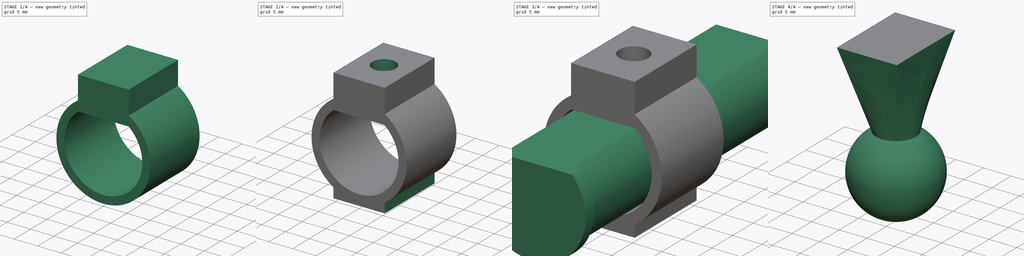
[diagram: build sequence overview — one tinted view per stage of 4, left to right]
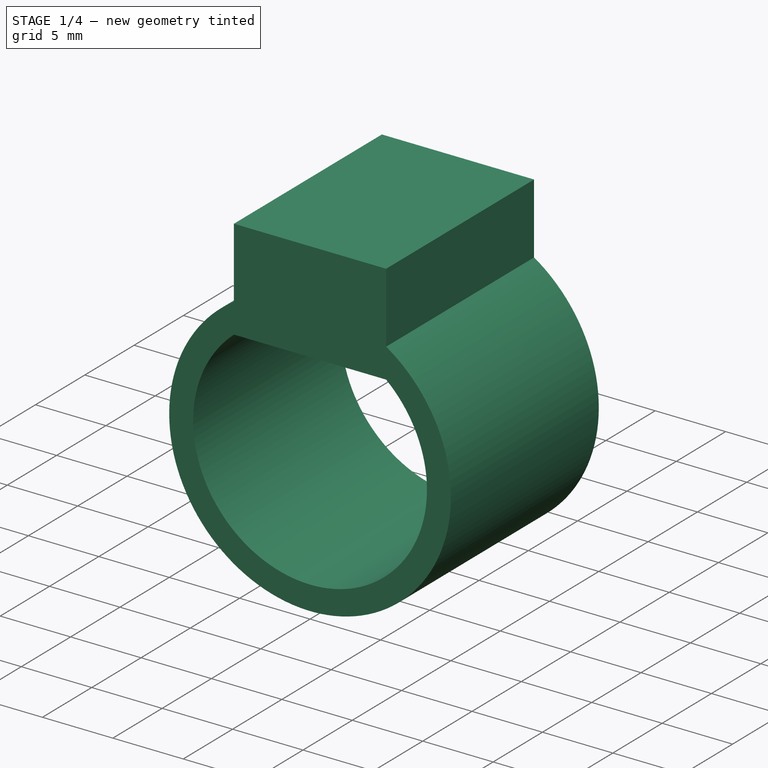
[diagram: stage 1 of 4 — iso view after this stage's code; geometry added in this stage tinted green]
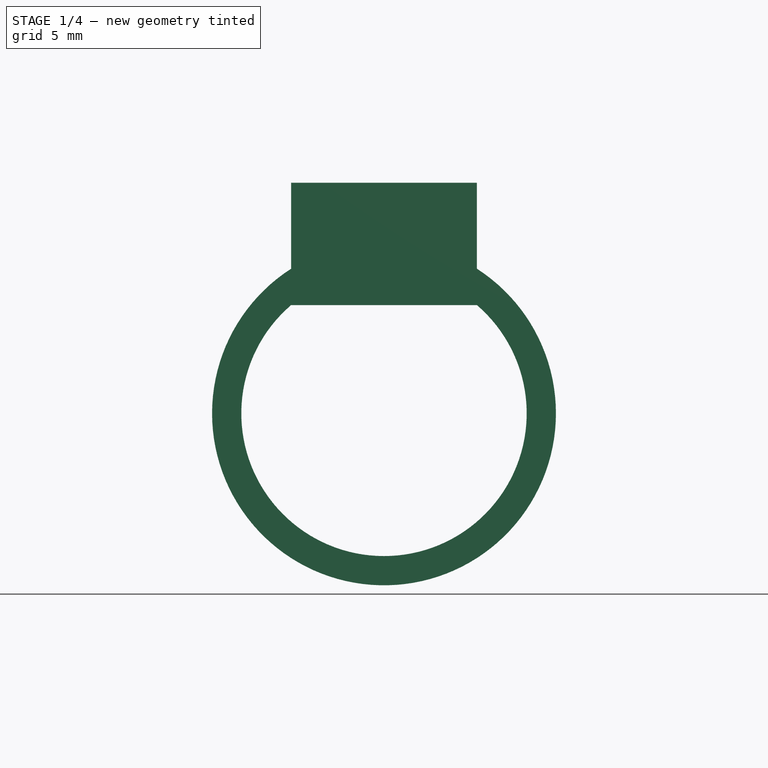
[diagram: stage 1 of 4 — front view after this stage's code; geometry added in this stage tinted green]
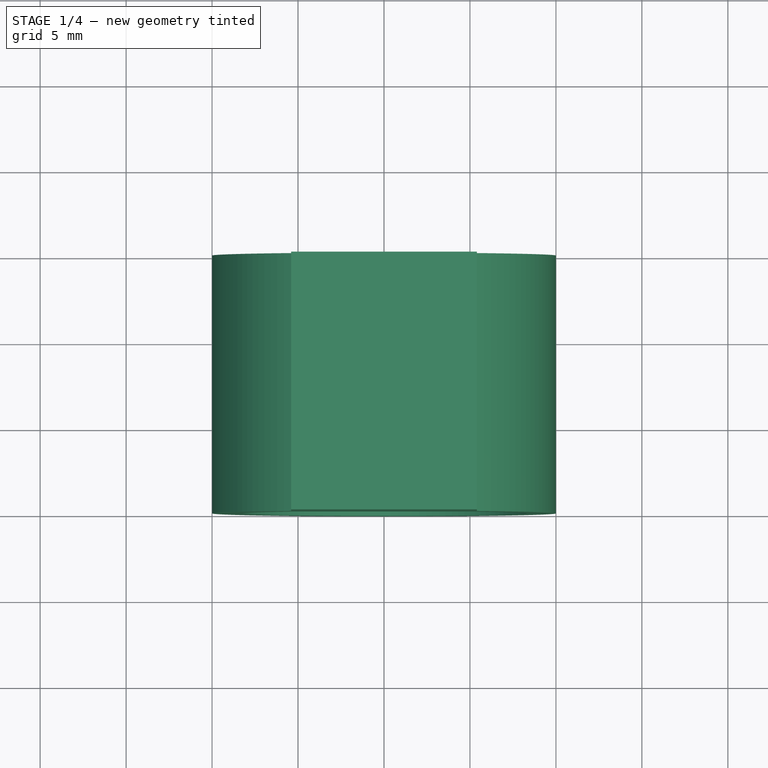
[diagram: stage 1 of 4 — top view after this stage's code; geometry added in this stage tinted green]
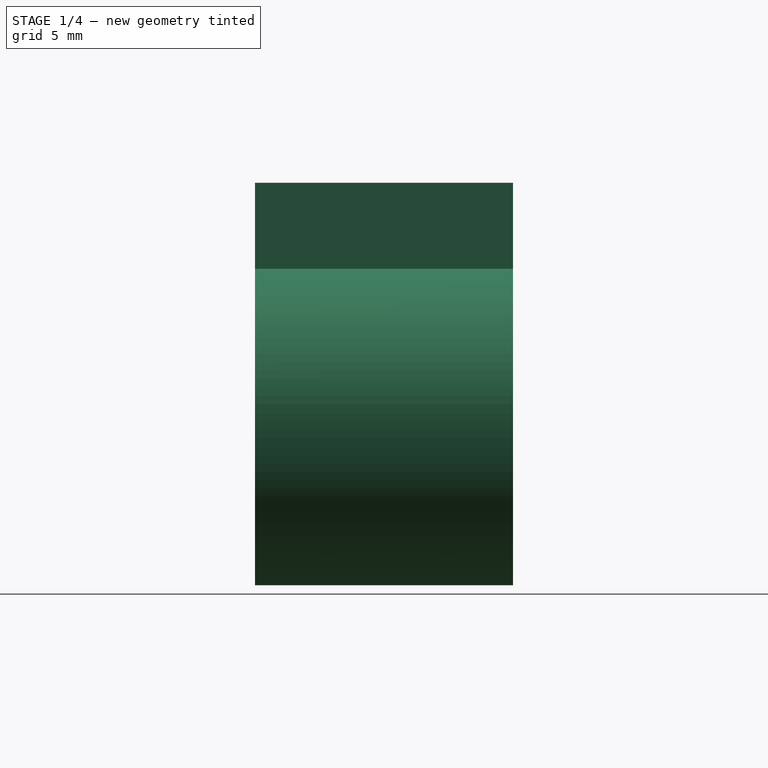
[diagram: stage 1 of 4 — right view after this stage's code; geometry added in this stage tinted green]
FCSTD DOCUMENT  (FreeCAD 1.0R39109 (Git))
Label: phone_adaptor
License: All rights reserved
LicenseURL: http://www.ohwr.org/attachments/2388/cern_ohl_v_1_2.txt
objects: Sketcher::SketchObject×11, PartDesign::Pad×4, PartDesign::Plane×4, PartDesign::Body×3, PartDesign::SubShapeBinder×2, PartDesign::Pocket×2, PartDesign::Hole×1, PartDesign::AdditiveLoft×1, PartDesign::Point×1, PartDesign::Line×1, PartDesign::Revolution×1
note: 60 computed .brp shape members not serialized (recipe doc carries the construction recipe); baked Part::Feature solids carry a one-line shape summary decoded from their .brp

FEATURE [PartDesign::Body] Body  label="slider"
  AllowCompound = false
  Group = -> [Sketch,Pad,Sketch001,Pad001,Hole]
  Origin = -> Origin
  Tip = -> Hole
FEATURE [PartDesign::Plane] DatumPlane
  AttachmentOffset = pos=(0,0,20) rot=(0,0,1;0rad)
  AttachmentSupport = -> [XZ_Plane001]
  Length = 60
  MapMode = 5
  Placement = pos=(0,-20,4.4e-15) rot=(1,0,0;1.5708rad)
  ResizeMode = 0
  Width = 60
FEATURE [Sketcher::SketchObject] Sketch002
  ArcFitTolerance = 1e-06
  AttachmentSupport = -> [DatumPlane]
  FullyConstrained = true
  MakeInternals = false
  MapMode = 5
  Placement = pos=(0,-20,4.4e-15) rot=(1,0,0;1.5708rad)
  sketch-geometry (7):
    g0: ArcOfCircle CenterX=0 CenterY=0 CenterZ=0 NormalX=0 NormalY=0 NormalZ=1 AngleXU=0 Radius=8.3 StartAngle=2.27976 EndAngle=7.14502
    g1: LineSegment [constr] StartX=-8 StartY=0 StartZ=0 EndX=-8.3 EndY=0 EndZ=0
    g2: ArcOfCircle CenterX=0 CenterY=0 CenterZ=0 NormalX=0 NormalY=0 NormalZ=1 AngleXU=0 Radius=10 StartAngle=2.14167 EndAngle=7.2831
    g3: LineSegment StartX=-5.4037 StartY=6.3 StartZ=0 EndX=5.4037 EndY=6.3 EndZ=0
    g4: LineSegment StartX=-5.4037 StartY=8.41427 StartZ=0 EndX=-5.4037 EndY=13.4143 EndZ=0
    g5: LineSegment StartX=-5.4037 StartY=13.4143 StartZ=0 EndX=5.4037 EndY=13.4143 EndZ=0
    g6: LineSegment StartX=5.4037 StartY=13.4143 StartZ=0 EndX=5.4037 EndY=8.41427 EndZ=0
  constraints (22):
    c: Coincident(g0,g-1)
    c: PointOnObject(g1,g-3)
    c: PointOnObject(g1,g0)
    c: Horizontal(g1)
    c: PointOnObject(g1,g-1)
    c: Distance(g1,g1) = 0.3
    c: Coincident(g2,g0)
    c: Diameter(g2) = 20
    c: Horizontal(g3)
    c: Coincident(g0,g3)
    c: Coincident(g0,g3)
    c: Distance(g0,g-4) = 0.3
    c: Vertical(g4)
    c: Coincident(g4,g5)
    c: Horizontal(g5)
    c: Coincident(g5,g6)
    c: Vertical(g6)
    c: Vertical(g4,g0)
    c: Vertical(g6,g0)
    c: Coincident(g2,g6)
    c: Coincident(g2,g4)
    c: DistanceY(g4,g4) = 5
FEATURE [PartDesign::SubShapeBinder] Binder
  BindCopyOnChange = 0
  BindMode = 0
  ClaimChildren = false
  Context = -> Body001 [Binder.]
  Fuse = false
  MakeFace = true
  OffsetFill = false
  OffsetIntersection = false
  OffsetJoinType = 0
  OffsetOpenResult = false
  PartialLoad = false
  Refine = true
  Relative = true
  Support = -> [Body]
  _Version = 2
FEATURE [PartDesign::Pad] Pad002
  Direction = (0,-1,2e-16)
  Length = 15
  Length2 = 10
  Placement = pos=(0,-20,4.4e-15) rot=(1,0,0;1.5708rad)
  Profile = -> Sketch002
  ReferenceAxis = -> Sketch002 [N_Axis]
  Refine = true
  Suppressed = false
  Type = 0
FEATURE [PartDesign::SubShapeBinder] Binder001
  BindCopyOnChange = 0
  BindMode = 0
  ClaimChildren = false
  Context = -> Body002 [Binder001.]
  Fuse = false
  MakeFace = true
  OffsetFill = false
  OffsetIntersection = false
  OffsetJoinType = 0
  OffsetOpenResult = false
  PartialLoad = false
  Refine = true
  Relative = true
  Support = -> [Body001]
  _Version = 2
FEATURE [PartDesign::Plane] DatumPlane001
  AttachmentOffset = pos=(0,0,-9) rot=(1,0,0;1.5708rad)
  AttachmentSupport = -> [Binder001]
  Length = 70.9545
  MapMode = 7
  Placement = pos=(3.5963,-35,-10.5) rot=(0.707107,-0.707107,0;3.14159rad)
  ResizeMode = 0
  Width = 60.9545
FEATURE [PartDesign::Plane] DatumPlane002
  AttachmentOffset = pos=(0,0,15) rot=(0,0,1;0rad)
  AttachmentSupport = -> [DatumPlane001]
  Length = 70.9545
  MapMode = 5
  Placement = pos=(3.5963,-35,-25.5) rot=(0.707107,-0.707107,0;3.14159rad)
  ResizeMode = 0
  Width = 60.9545
FEATURE [Sketcher::SketchObject] Sketch003
  ArcFitTolerance = 1e-06
  AttachmentSupport = -> [DatumPlane001]
  ExternalGeometry = -> [Binder001]
  FullyConstrained = true
  MakeInternals = false
  MapMode = 5
  Placement = pos=(3.5963,-35,-10.5) rot=(0.707107,-0.707107,0;3.14159rad)
  sketch-geometry (4):
    g0: LineSegment StartX=-15 StartY=-4.7037 StartZ=0 EndX=-15 EndY=-1.8074 EndZ=0
    g1: LineSegment StartX=-15 StartY=-1.8074 StartZ=0 EndX=-15 EndY=-1.8074 EndZ=0
    g2: LineSegment StartX=-15 StartY=-1.8074 StartZ=0 EndX=-15 EndY=-4.7037 EndZ=0
    g3: LineSegment StartX=-15 StartY=-4.7037 StartZ=0 EndX=-15 EndY=-4.7037 EndZ=0
  constraints (10):
    c: Coincident(g0,g1)
    c: Coincident(g1,g2)
    c: Coincident(g2,g3)
    c: Coincident(g3,g0)
    c: Vertical(g0)
    c: Vertical(g2)
    c: Horizontal(g1)
    c: Horizontal(g3)
    c: Coincident(g0,g-3)
    c: Coincident(g1,g-4)
FEATURE [Sketcher::SketchObject] Sketch004
  ArcFitTolerance = 1e-06
  AttachmentSupport = -> [DatumPlane002]
  FullyConstrained = true
  MakeInternals = false
  MapMode = 5
  Placement = pos=(3.5963,-35,-25.5) rot=(0.707107,-0.707107,0;3.14159rad)
  sketch-geometry (1):
    g0: Circle CenterX=0 CenterY=-31.4 CenterZ=0 NormalX=0 NormalY=0 NormalZ=1 AngleXU=0 Radius=3.6
  constraints (3):
    c: Diameter(g0) = 7.2
    c: PointOnObject(g0,g-2)
    c: Tangent(g0,g-3)
FEATURE [Sketcher::SketchObject] Sketch006
  ArcFitTolerance = 1e-06
  AttachmentSupport = -> [Pad002]
  ExternalGeometry = -> [Pad002]
  FullyConstrained = true
  MakeInternals = false
  MapMode = 5
  Placement = pos=(0,-20,6.3) rot=(1,0,0;3.14159rad)
  sketch-geometry (9):
    g0: LineSegment StartX=-3.925 StartY=9.7661 StartZ=0 EndX=-3.925 EndY=5.2339 EndZ=0
    g1: LineSegment StartX=-3.925 StartY=5.2339 StartZ=0 EndX=-6.75e-14 EndY=2.9678 EndZ=0
    g2: LineSegment StartX=-6.75e-14 StartY=2.9678 StartZ=0 EndX=3.925 EndY=5.2339 EndZ=0
    g3: LineSegment StartX=3.925 StartY=5.2339 StartZ=0 EndX=3.925 EndY=9.7661 EndZ=0
    g4: LineSegment StartX=3.925 StartY=9.7661 StartZ=0 EndX=-7.86e-14 EndY=12.0322 EndZ=0
    g5: LineSegment StartX=-7.86e-14 StartY=12.0322 StartZ=0 EndX=-3.925 EndY=9.7661 EndZ=0
    g6: Circle [constr] CenterX=0 CenterY=7.5 CenterZ=0 NormalX=0 NormalY=0 NormalZ=1 AngleXU=0 Radius=4.5322
    g7: LineSegment [constr] StartX=-7.86e-14 StartY=12.0322 StartZ=0 EndX=-2.1e-15 EndY=15 EndZ=0
    g8: LineSegment [constr] StartX=-6.75e-14 StartY=2.9678 StartZ=0 EndX=0 EndY=0 EndZ=0
  constraints (21):
    c: Coincident(g0,g1)
    c: Coincident(g1,g2)
    c: Coincident(g2,g3)
    c: Coincident(g3,g4)
    c: Coincident(g4,g5)
    c: Coincident(g5,g0)
    c: Equal(g0, g1-g5) x5
    c: PointOnObject(g0,g6)
    c: PointOnObject(g1,g6)
    c: PointOnObject(g2,g6)
    c: PointOnObject(g3,g6)
    c: PointOnObject(g4,g6)
    c: PointOnObject(g5,g6)
    c: PointOnObject(g6,g-2)
    c: Vertical(g0)
    c: Coincident(g7,g4)
    c: Symmetric(g-3,g-3,g7)
    c: Coincident(g8,g1)
    c: Coincident(g8,g-1)
    c: Equal(g8,g7)
    c: DistanceX(g0,g2) = 7.85
FEATURE [PartDesign::Pocket] Pocket
  BaseFeature = -> Pad002
  Direction = (0,0,1)
  Length = 5
  Length2 = 5
  Placement = pos=(0,-20,4.4e-15) rot=(1,0,0;1.5708rad)
  Profile = -> Sketch006
  ReferenceAxis = -> Sketch006 [N_Axis]
  Refine = true
  Suppressed = false
  Type = 0
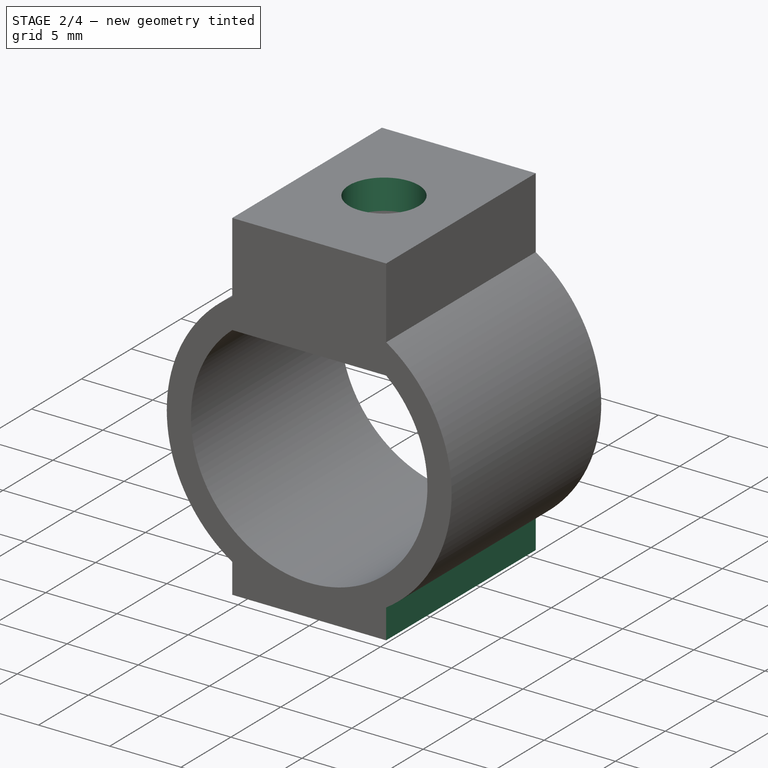
[diagram: stage 2 of 4 — iso view after this stage's code; geometry added in this stage tinted green]
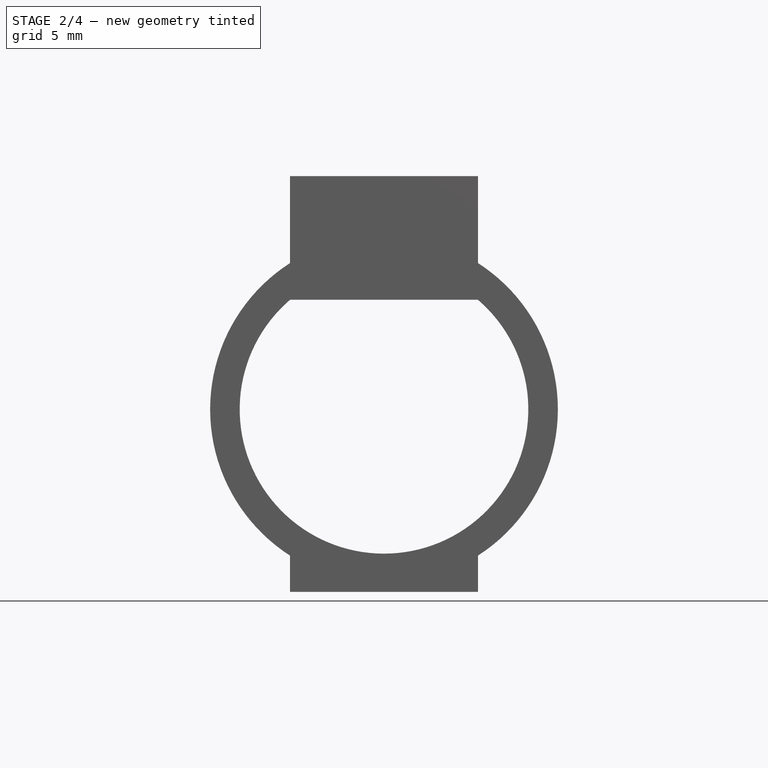
[diagram: stage 2 of 4 — front view after this stage's code; geometry added in this stage tinted green]
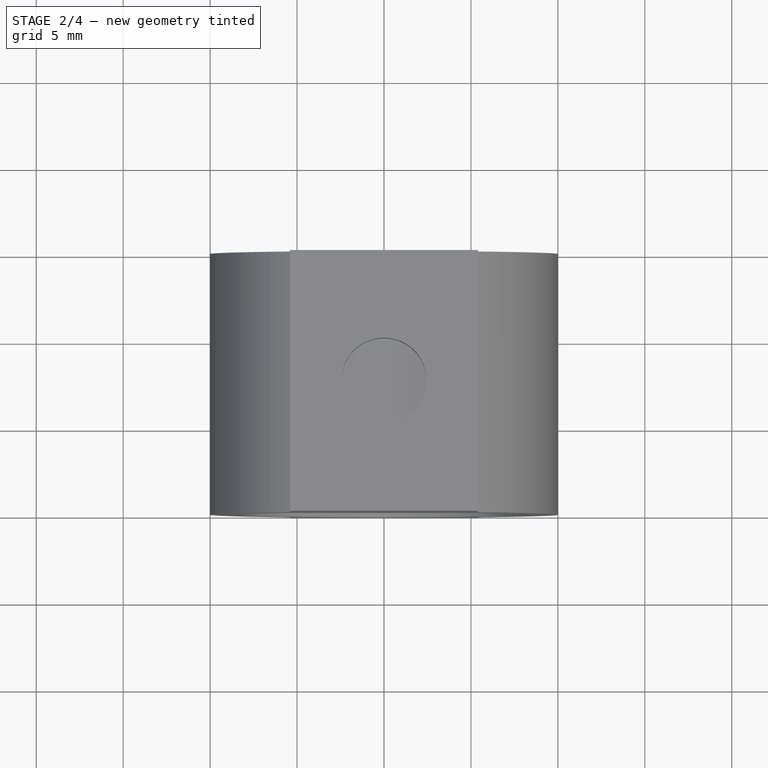
[diagram: stage 2 of 4 — top view after this stage's code; geometry added in this stage tinted green]
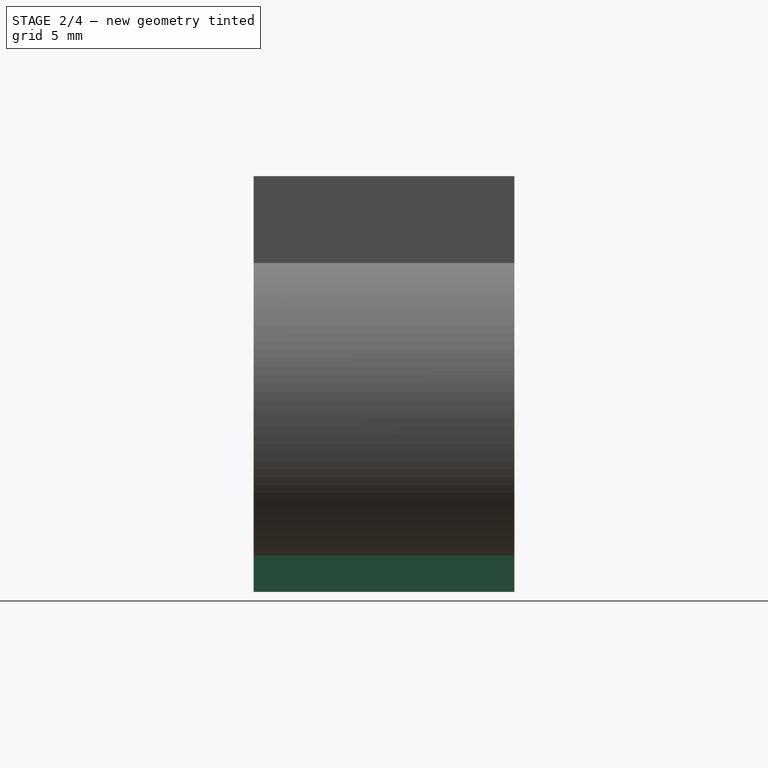
[diagram: stage 2 of 4 — right view after this stage's code; geometry added in this stage tinted green]
FEATURE [Sketcher::SketchObject] Sketch007
  ArcFitTolerance = 1e-06
  AttachmentSupport = -> [Pocket]
  ExternalGeometry = -> [Pocket]
  FullyConstrained = true
  MakeInternals = false
  MapMode = 5
  Placement = pos=(0,-20,11.3) rot=(1,0,0;3.14159rad)
  sketch-geometry (1):
    g0: Circle CenterX=-3.3027e-12 CenterY=7.5 CenterZ=0 NormalX=0 NormalY=0 NormalZ=1 AngleXU=0 Radius=2.45
  constraints (2):
    c: Symmetric(g-4,g-3,g0)
    c: Diameter(g0) = 4.9
FEATURE [PartDesign::Pocket] Pocket001
  BaseFeature = -> Pocket
  Direction = (0,0,1)
  Length = 5
  Length2 = 5
  Placement = pos=(0,-20,4.4e-15) rot=(1,0,0;1.5708rad)
  Profile = -> Sketch007
  ReferenceAxis = -> Sketch007 [N_Axis]
  Refine = true
  Suppressed = false
  Type = 1
FEATURE [Sketcher::SketchObject] Sketch008
  ArcFitTolerance = 1e-06
  AttachmentSupport = -> [Pocket001]
  ExternalGeometry = -> [Pocket001]
  FullyConstrained = true
  MakeInternals = false
  MapMode = 5
  Placement = pos=(0,-35,9.4e-15) rot=(1,0,0;1.5708rad)
  sketch-geometry (5):
    g0: LineSegment StartX=-5.4037 StartY=-8.41427 StartZ=0 EndX=-5.4037 EndY=-10.5 EndZ=0
    g1: LineSegment StartX=-5.4037 StartY=-10.5 StartZ=0 EndX=5.4037 EndY=-10.5 EndZ=0
    g2: LineSegment StartX=5.4037 StartY=-10.5 StartZ=0 EndX=5.4037 EndY=-8.41427 EndZ=0
    g3: LineSegment [constr] StartX=3.8e-15 StartY=-10.5 StartZ=0 EndX=3.8e-15 EndY=-10 EndZ=0
    g4: ArcOfCircle CenterX=0 CenterY=3.3e-15 CenterZ=0 NormalX=0 NormalY=0 NormalZ=1 AngleXU=0 Radius=10 StartAngle=4.14151 EndAngle=5.28327
  constraints (16):
    c: PointOnObject(g0,g-5)
    c: Vertical(g0)
    c: Coincident(g0,g1)
    c: Coincident(g1,g2)
    c: PointOnObject(g2,g-5)
    c: Horizontal(g1)
    c: Vertical(g2)
    c: Vertical(g0,g-5)
    c: Vertical(g-5,g2)
    c: Symmetric(g1,g1,g3)
    c: PointOnObject(g3,g-5)
    c: Vertical(g3)
    c: DistanceY(g3,g3) = 0.5
    c: Coincident(g4,g-5)
    c: Coincident(g0,g4)
    c: PointOnObject(g4,g2)
FEATURE [PartDesign::Pad] Pad003
  BaseFeature = -> Pocket001
  Direction = (0,-1,2e-16)
  Length = 10
  Length2 = 10
  Placement = pos=(0,-20,4.4e-15) rot=(1,0,0;1.5708rad)
  Profile = -> Sketch008
  ReferenceAxis = -> Sketch008 [N_Axis]
  Refine = true
  Reversed = true
  Suppressed = false
  Type = 3
  UpToFace = -> Pocket001 [Face4]
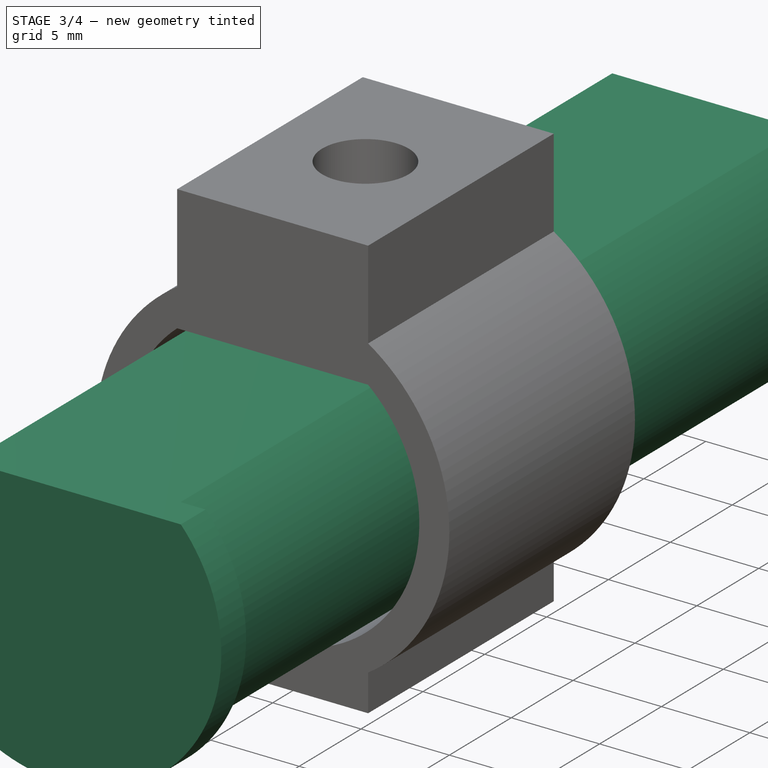
[diagram: stage 3 of 4 — iso view after this stage's code; geometry added in this stage tinted green]
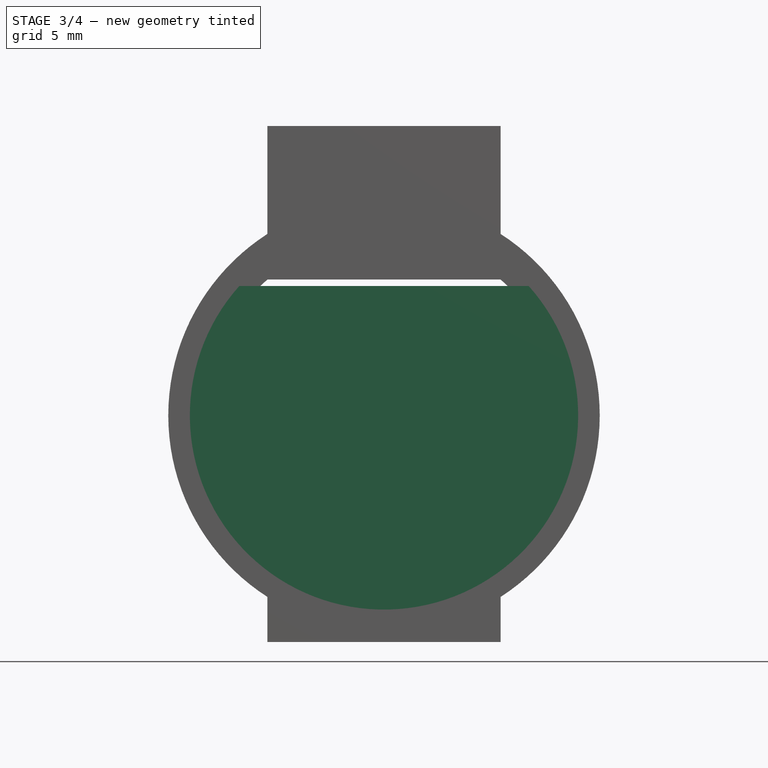
[diagram: stage 3 of 4 — front view after this stage's code; geometry added in this stage tinted green]
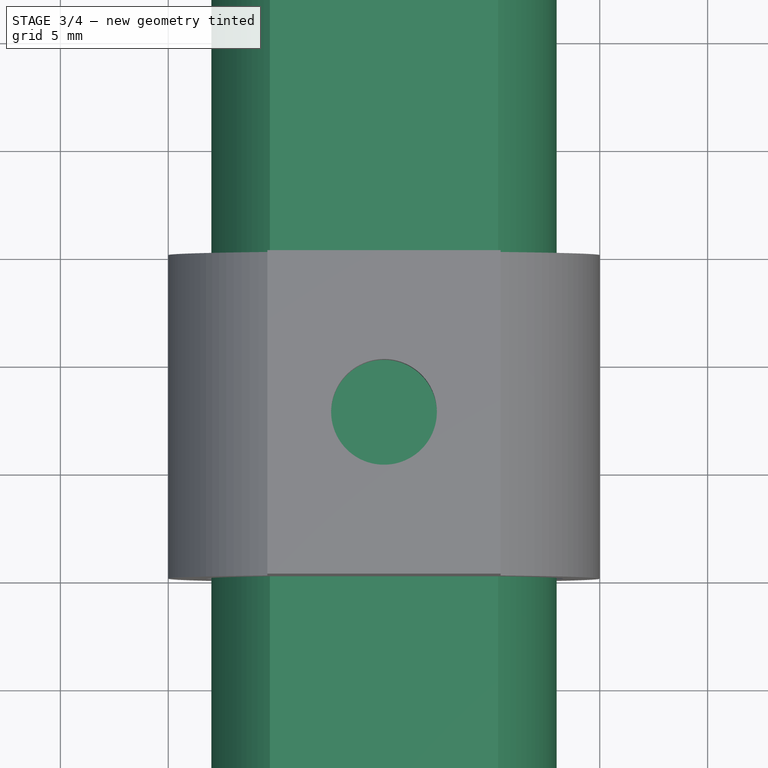
[diagram: stage 3 of 4 — top view after this stage's code; geometry added in this stage tinted green]
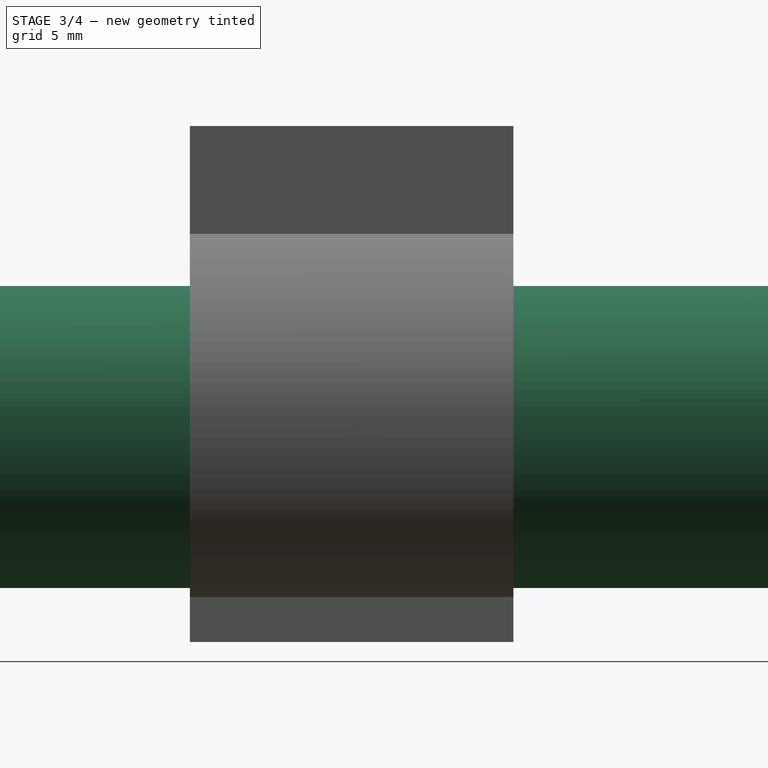
[diagram: stage 3 of 4 — right view after this stage's code; geometry added in this stage tinted green]
FEATURE [Sketcher::SketchObject] Sketch
  ArcFitTolerance = 1e-06
  AttachmentSupport = -> [XZ_Plane]
  FullyConstrained = true
  MakeInternals = false
  MapMode = 5
  Placement = pos=(0,0,0) rot=(1,0,0;1.5708rad)
  sketch-geometry (2):
    g0: ArcOfCircle CenterX=0 CenterY=0 CenterZ=0 NormalX=0 NormalY=0 NormalZ=1 AngleXU=0 Radius=8 StartAngle=2.29353 EndAngle=7.13125
    g1: LineSegment StartX=-5.2915 StartY=6 StartZ=0 EndX=5.2915 EndY=6 EndZ=0
  constraints (6):
    c: Coincident(g0,g-1)
    c: Diameter(g0) = 16
    c: Horizontal(g1)
    c: DistanceY(g-1,g1) = 6
    c: Coincident(g0,g1)
    c: Coincident(g0,g1)
FEATURE [PartDesign::Pad] Pad
  Direction = (0,-1,2e-16)
  Length = 50
  Length2 = 10
  Placement = pos=(0,0,0) rot=(1,0,0;1.5708rad)
  Profile = -> Sketch
  ReferenceAxis = -> Sketch [N_Axis]
  Refine = true
  Suppressed = false
  Type = 0
FEATURE [Sketcher::SketchObject] Sketch001
  ArcFitTolerance = 1e-06
  AttachmentSupport = -> [Pad]
  ExternalGeometry = -> [Pad]
  FullyConstrained = true
  MakeInternals = false
  MapMode = 5
  Placement = pos=(0,-50,0) rot=(1,0,0;1.5708rad)
  sketch-geometry (2):
    g0: ArcOfCircle CenterX=0 CenterY=0 CenterZ=0 NormalX=0 NormalY=0 NormalZ=1 AngleXU=0 Radius=9 StartAngle=2.41186 EndAngle=7.01291
    g1: LineSegment StartX=-6.7082 StartY=6 StartZ=0 EndX=6.7082 EndY=6 EndZ=0
  constraints (6):
    c: Coincident(g0,g-1)
    c: Diameter(g0) = 18
    c: Horizontal(g1)
    c: PointOnObject(g-3,g1)
    c: Coincident(g0,g1)
    c: Coincident(g0,g1)
FEATURE [PartDesign::Pad] Pad001
  BaseFeature = -> Pad
  Direction = (0,-1,2e-16)
  Length = 2
  Length2 = 10
  Placement = pos=(0,0,0) rot=(1,0,0;1.5708rad)
  Profile = -> Sketch001
  ReferenceAxis = -> Sketch001 [N_Axis]
  Refine = true
  Suppressed = false
  Type = 0
FEATURE [PartDesign::Hole] Hole
  BaseFeature = -> Pad001
  CustomThreadClearance = 0
  Depth = 15
  DepthType = 0
  Diameter = 5.5
  DrillForDepth = false
  DrillPoint = 1
  DrillPointAngle = 118
  HoleCutCountersinkAngle = 90
  HoleCutCustomValues = false
  HoleCutDepth = 0
  HoleCutDiameter = 6.1
  HoleCutType = 0
  ModelThread = true
  Placement = pos=(0,0,0) rot=(1,0,0;1.5708rad)
  Profile = -> Pad001 [Face2]
  Refine = true
  Suppressed = false
  Tapered = false
  TaperedAngle = 90
  ThreadClass = 0
  ThreadDepth = 15
  ThreadDepthType = 0
  ThreadDirection = 0
  ThreadFit = 0
  ThreadSize = 10
  ThreadType = 4
  Threaded = true
  UseCustomThreadClearance = false
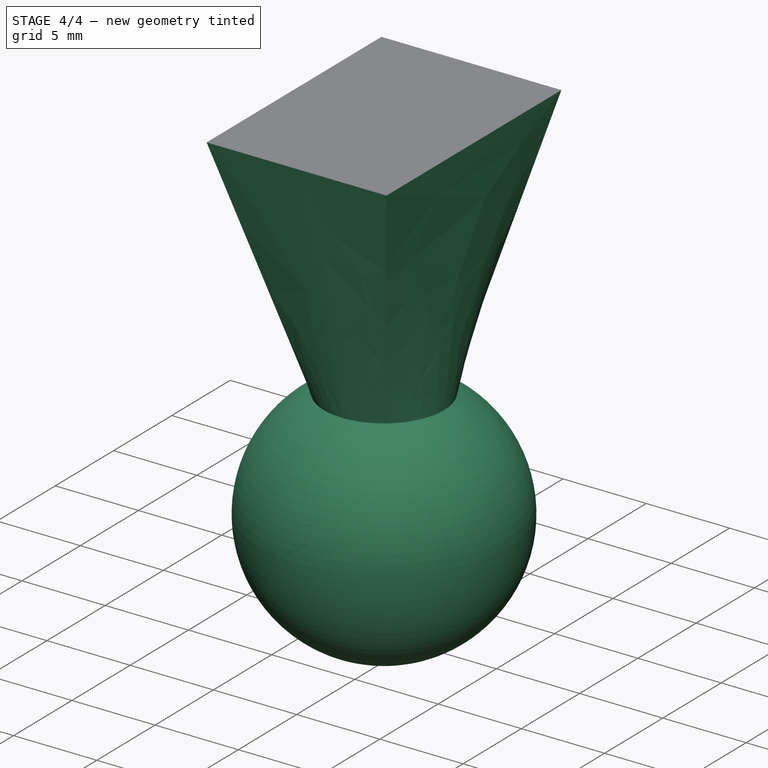
[diagram: stage 4 of 4 — iso view after this stage's code; geometry added in this stage tinted green]
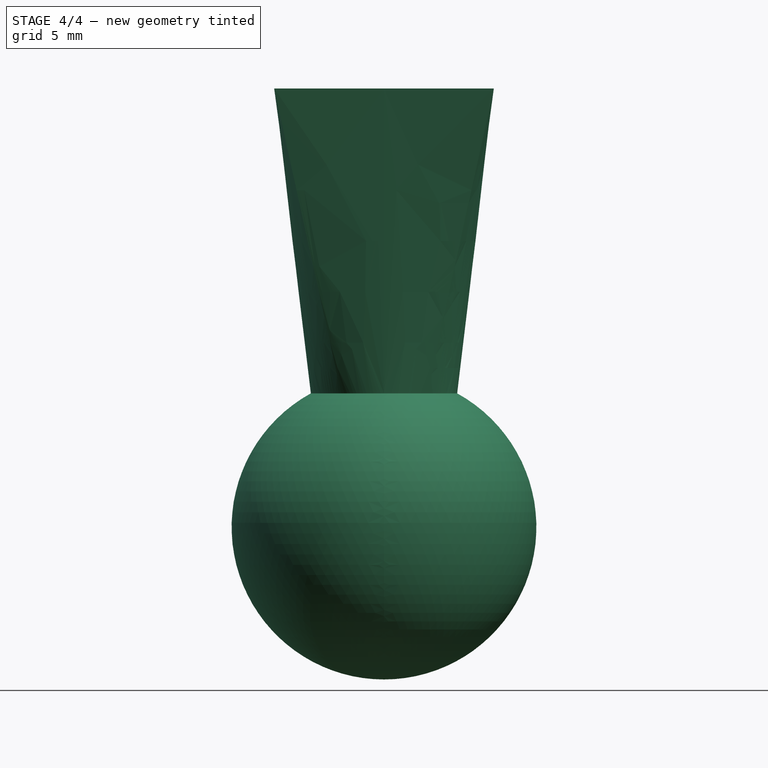
[diagram: stage 4 of 4 — front view after this stage's code; geometry added in this stage tinted green]
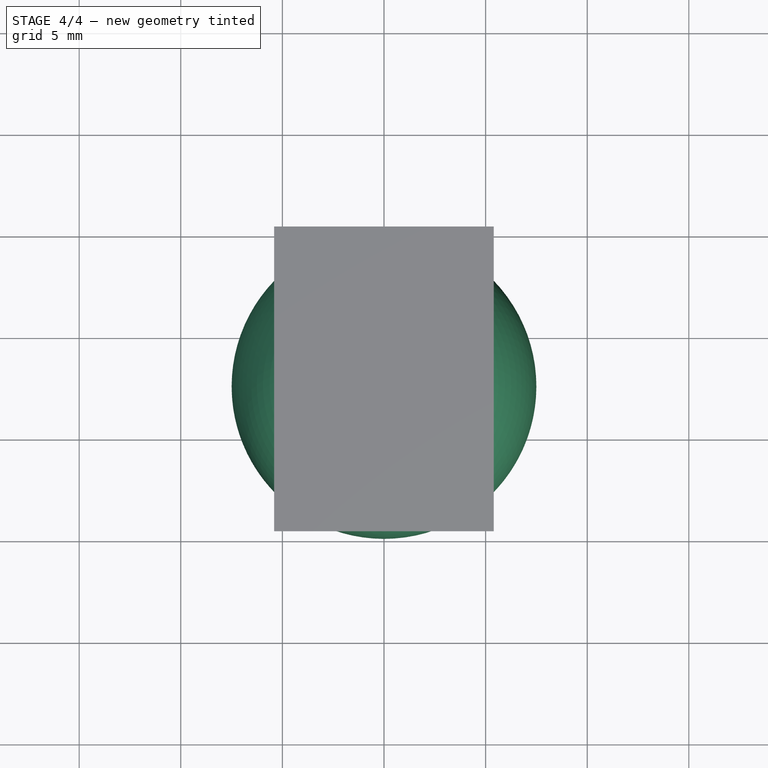
[diagram: stage 4 of 4 — top view after this stage's code; geometry added in this stage tinted green]
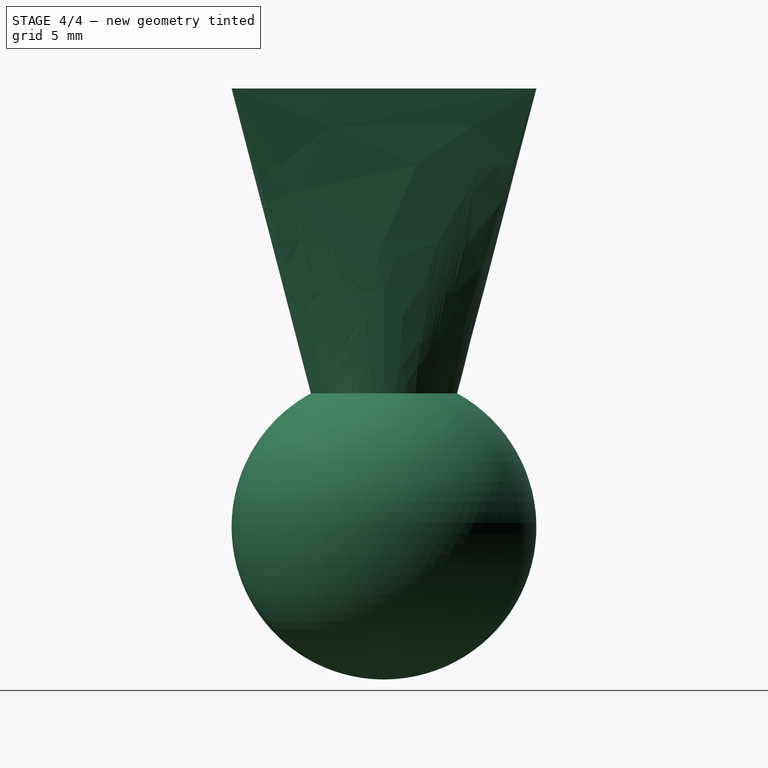
[diagram: stage 4 of 4 — right view after this stage's code; geometry added in this stage tinted green]
FEATURE [PartDesign::Body] Body001  label="bracket"
  AllowCompound = false
  Group = -> [DatumPlane,Sketch002,Binder,Pad002,Sketch006,Pocket,Sketch007,Pocket001,Sketch008,Pad003]
  Origin = -> Origin001
  Tip = -> Pad003
FEATURE [Sketcher::SketchObject] Sketch009
  ArcFitTolerance = 1e-06
  AttachmentSupport = -> [DatumPlane001]
  ExternalGeometry = -> [Binder001]
  FullyConstrained = true
  MakeInternals = false
  MapMode = 5
  Placement = pos=(3.5963,-35,-10.5) rot=(0.707107,-0.707107,0;3.14159rad)
  sketch-geometry (4):
    g0: LineSegment StartX=-15 StartY=9 StartZ=0 EndX=-15 EndY=-1.8074 EndZ=0
    g1: LineSegment StartX=-15 StartY=-1.8074 StartZ=0 EndX=0 EndY=-1.8074 EndZ=0
    g2: LineSegment StartX=0 StartY=-1.8074 StartZ=0 EndX=0 EndY=9 EndZ=0
    g3: LineSegment StartX=0 StartY=9 StartZ=0 EndX=-15 EndY=9 EndZ=0
  constraints (10):
    c: Coincident(g0,g1)
    c: Coincident(g1,g2)
    c: Coincident(g2,g3)
    c: Coincident(g3,g0)
    c: Vertical(g0)
    c: Vertical(g2)
    c: Horizontal(g1)
    c: Horizontal(g3)
    c: Coincident(g0,g-3)
    c: Coincident(g1,g-4)
FEATURE [Sketcher::SketchObject] Sketch010
  ArcFitTolerance = 1e-06
  AttachmentSupport = -> [DatumPlane002]
  ExternalGeometry = -> [Binder001]
  FullyConstrained = true
  MakeInternals = false
  MapMode = 5
  Placement = pos=(3.5963,-35,-25.5) rot=(0.707107,-0.707107,0;3.14159rad)
  sketch-geometry (1):
    g0: Circle CenterX=-7.5 CenterY=3.5963 CenterZ=0 NormalX=0 NormalY=0 NormalZ=1 AngleXU=0 Radius=3.6
  constraints (2):
    c: Diameter(g0) = 7.2
    c: Coincident(g0,g-3)
FEATURE [PartDesign::AdditiveLoft] AdditiveLoft
  Closed = false
  Placement = pos=(3.5963,-35,-10.5) rot=(0.707107,-0.707107,0;3.14159rad)
  Profile = -> Sketch009
  Refine = true
  Ruled = false
  Sections = -> [Sketch010]
  Suppressed = false
FEATURE [PartDesign::Point] DatumPoint
  AttacherType = Attacher::AttachEnginePoint
  AttachmentSupport = -> [AdditiveLoft]
  MapMode = 37
  Placement = pos=(6.7e-15,-27.5,-25.5) rot=(0,0,1;0rad)
FEATURE [PartDesign::Line] DatumLine
  AttacherType = Attacher::AttachEngineLine
  AttachmentOffset = pos=(0,0,0) rot=(1,0,0;1.5708rad)
  AttachmentSupport = -> [DatumPoint]
  Length = 20
  MapMode = 16
  Placement = pos=(6.7e-15,-27.5,-25.5) rot=(0.707107,0.707107,0;3.14159rad)
  ResizeMode = 0
FEATURE [PartDesign::Plane] DatumPlane003
  AttachmentOffset = pos=(0,0,0) rot=(1,0,0;1.5708rad)
  AttachmentSupport = -> [DatumLine]
  Length = 72.4495
  MapMode = 2
  Placement = pos=(6.7e-15,-27.5,-25.5) rot=(0.57735,0.57735,-0.57735;4.18879rad)
  ResizeMode = 0
  Width = 77.0291
FEATURE [Sketcher::SketchObject] Sketch005
  ArcFitTolerance = 1e-06
  AttachmentSupport = -> [DatumPlane003]
  FullyConstrained = false
  MakeInternals = false
  MapMode = 5
  Placement = pos=(6.7e-15,-27.5,-25.5) rot=(0.57735,0.57735,-0.57735;4.18879rad)
  expr: Constraints[4] = 7.2 / 2
  sketch-geometry (3):
    g0: LineSegment StartX=0 StartY=0 StartZ=0 EndX=-3.6 EndY=0 EndZ=0
    g1: ArcOfCircle CenterX=0 CenterY=6.57951 CenterZ=0 NormalX=0 NormalY=0 NormalZ=1 AngleXU=0 Radius=7.5 StartAngle=1.5708 EndAngle=4.21173
    g2: LineSegment StartX=5e-16 StartY=14.0795 StartZ=0 EndX=0 EndY=0 EndZ=0
  constraints (7):
    c: PointOnObject(g1,g-2)
    c: PointOnObject(g1,g-2)
    c: Coincident(g1,g0)
    c: Horizontal(g0)
    c: DistanceX(g0,g0) = 3.6
    c: Radius(g1) = 7.5
    c: Coincident(g2,g1)
FEATURE [PartDesign::Revolution] Revolution
  Angle = 360
  Angle2 = 60
  Axis = (0,0,-1)
  Base = (6.7e-15,-27.5,-25.5)
  BaseFeature = -> AdditiveLoft
  Placement = pos=(3.5963,-35,-10.5) rot=(0.707107,-0.707107,0;3.14159rad)
  Profile = -> Sketch005
  ReferenceAxis = -> Sketch005 [V_Axis]
  Refine = true
  Suppressed = false
  Type = 0
FEATURE [PartDesign::Body] Body002  label="ball_joint"
  AllowCompound = false
  Group = -> [DatumPlane001,Binder001,DatumPlane002,Sketch003,Sketch004,DatumPoint,DatumLine,DatumPlane003,Sketch005,Sketch009,Sketch010,AdditiveLoft,Revolution]
  Origin = -> Origin002
  Tip = -> Revolution
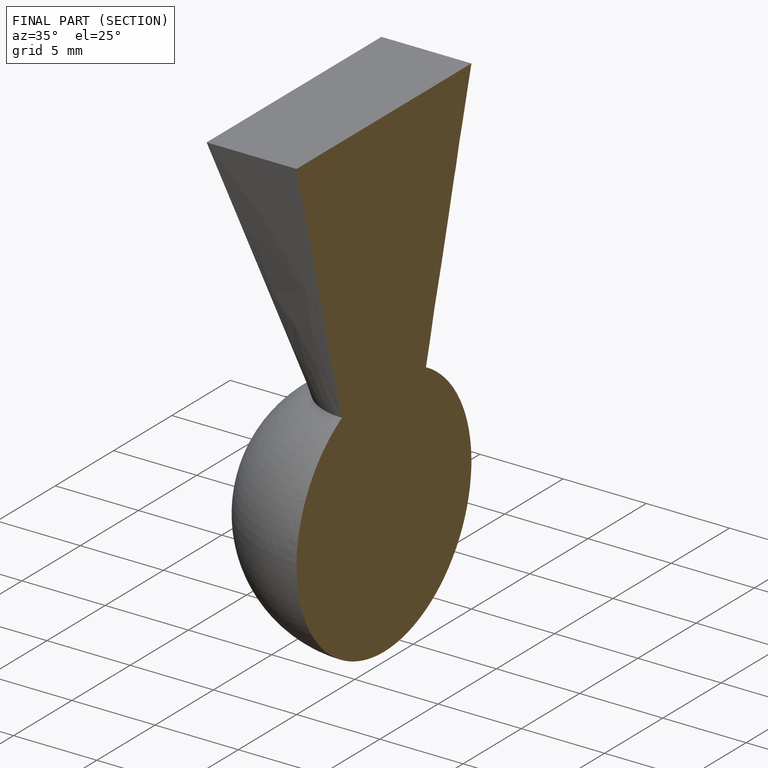
[diagram: finished part — half-section view (interior)]
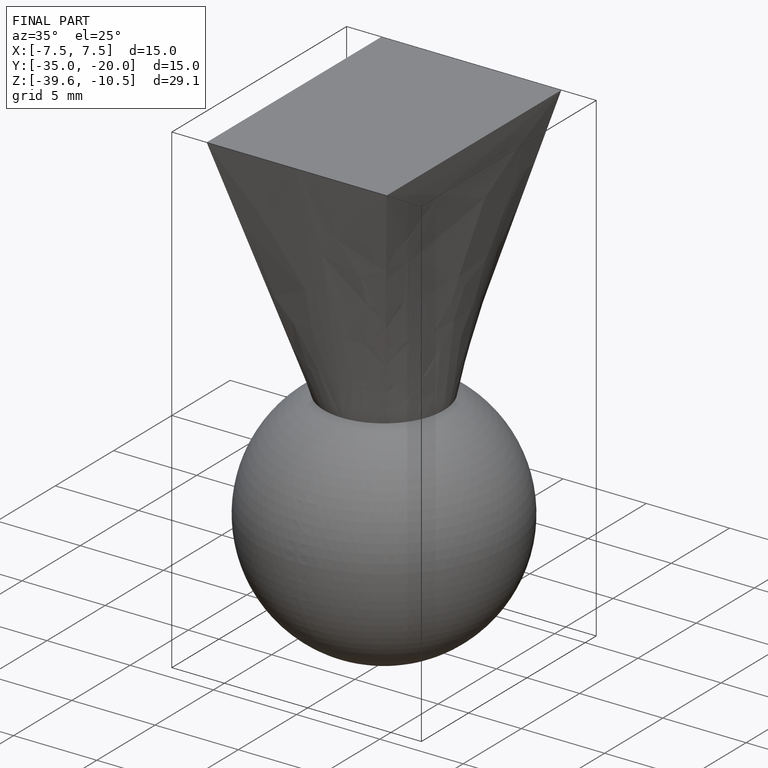
[diagram: finished part — iso view with bounding-box wireframe]
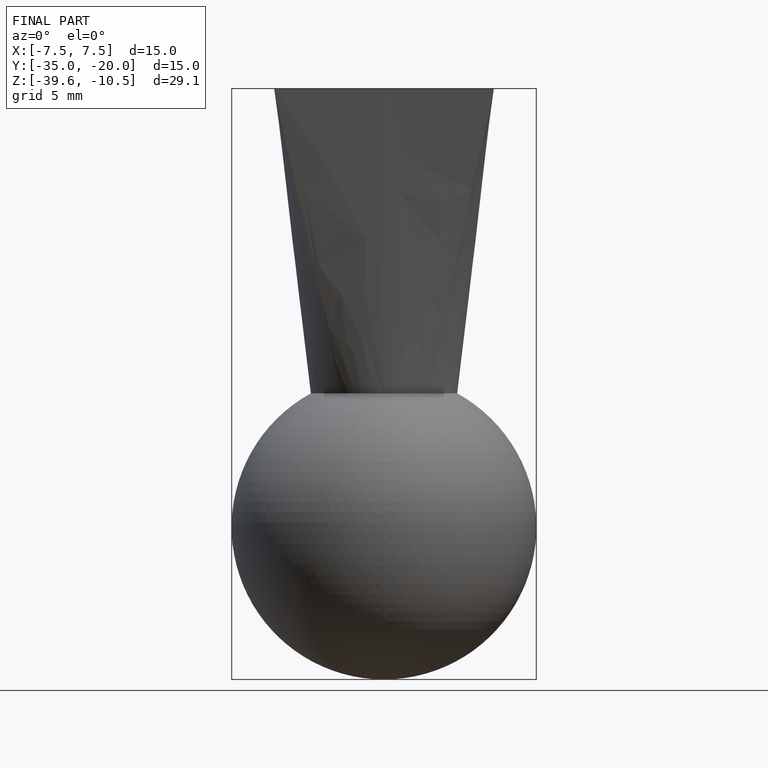
[diagram: finished part — front view with bounding-box wireframe]
